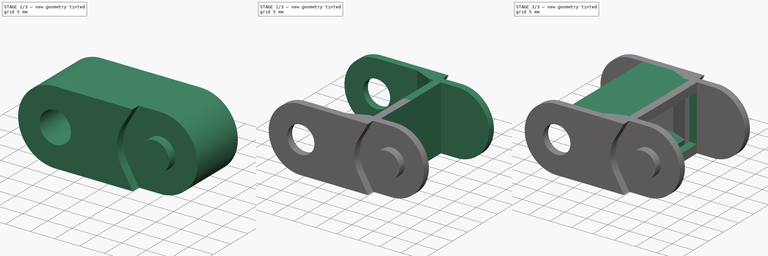
[diagram: build sequence overview — one tinted view per stage of 3, left to right]
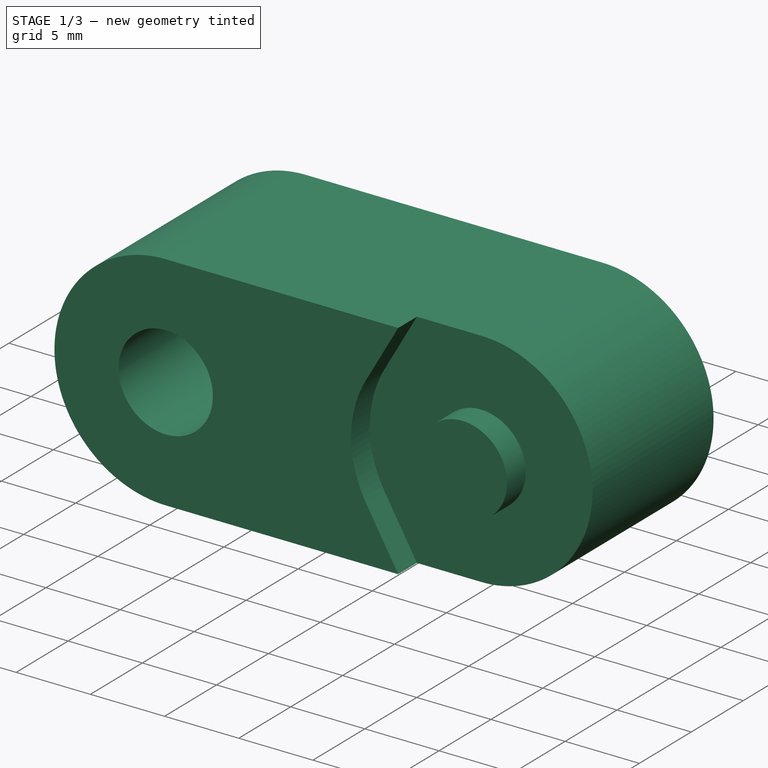
[diagram: stage 1 of 3 — iso view after this stage's code; geometry added in this stage tinted green]
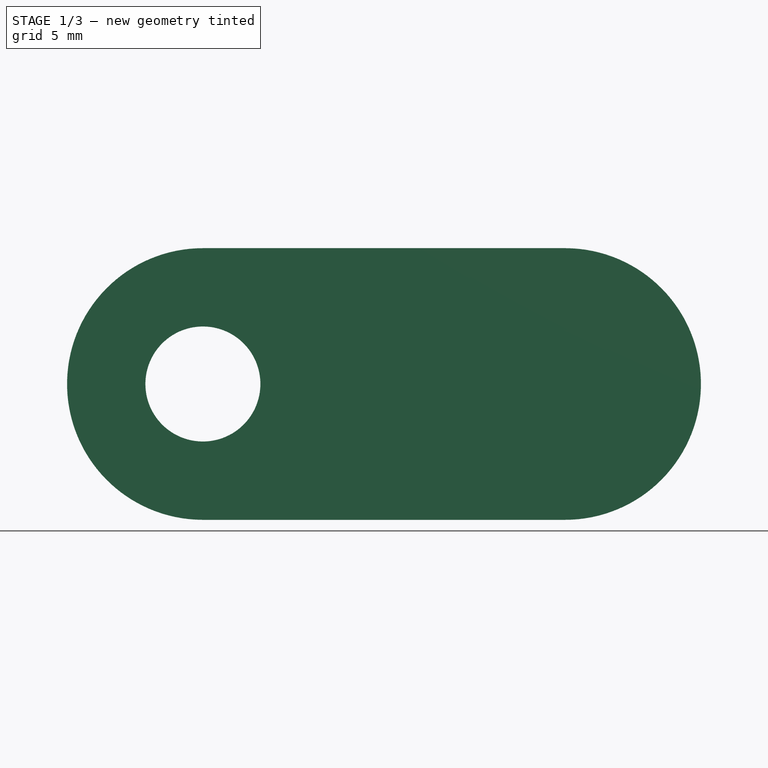
[diagram: stage 1 of 3 — front view after this stage's code; geometry added in this stage tinted green]
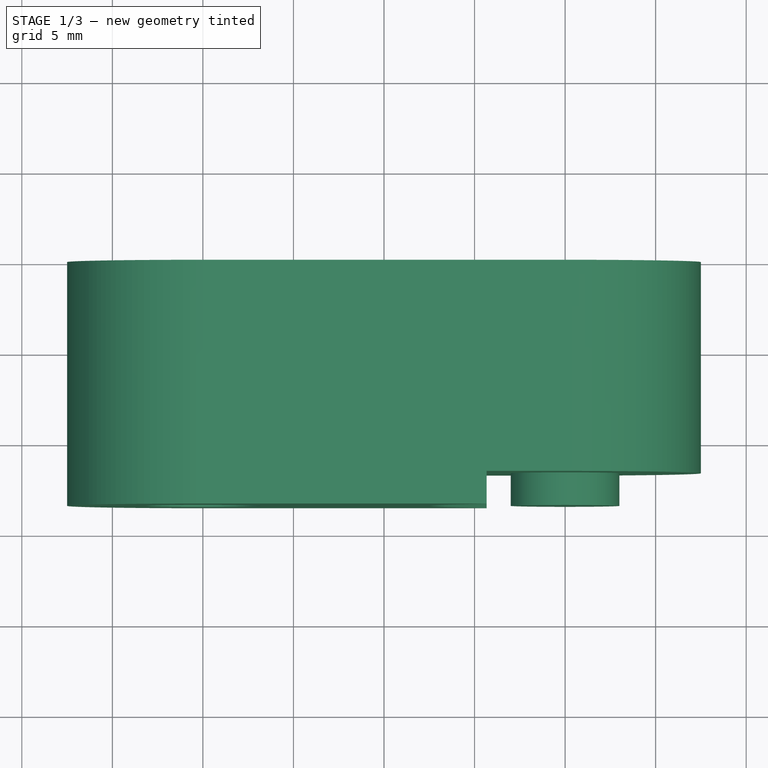
[diagram: stage 1 of 3 — top view after this stage's code; geometry added in this stage tinted green]
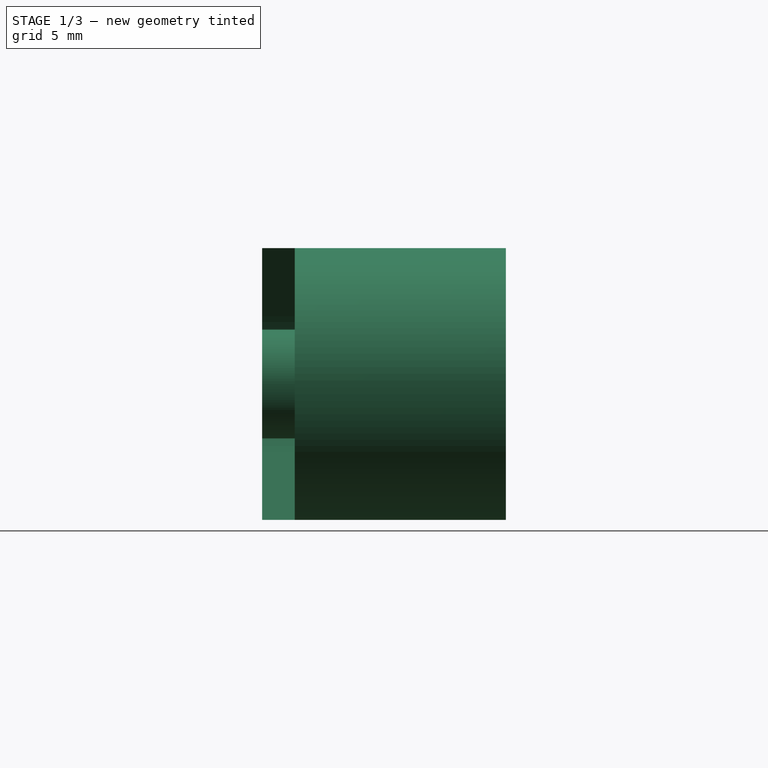
[diagram: stage 1 of 3 — right view after this stage's code; geometry added in this stage tinted green]
FCSTD DOCUMENT  (FreeCAD 1.0R39109 (Git))
Label: dragchain-link
License: All rights reserved
LicenseURL: http://en.wikipedia.org/wiki/All_rights_reserved
objects: Sketcher::SketchObject×5, PartDesign::Pocket×3, PartDesign::Pad×2, PartDesign::Mirrored×1, PartDesign::Body×1
note: 28 computed .brp shape members not serialized (recipe doc carries the construction recipe); baked Part::Feature solids carry a one-line shape summary decoded from their .brp

FEATURE [Sketcher::SketchObject] Sketch
  ArcFitTolerance = 1e-06
  FullyConstrained = true
  MakeInternals = false
  MapMode = 5
  Placement = pos=(0,0,0) rot=(1,0,0;1.5708rad)
  sketch-geometry (8):
    g0: Circle CenterX=0 CenterY=0 CenterZ=0 NormalX=0 NormalY=0 NormalZ=1 AngleXU=0 Radius=3.175
    g1: ArcOfCircle CenterX=0 CenterY=0 CenterZ=0 NormalX=0 NormalY=0 NormalZ=1 AngleXU=0 Radius=7.5 StartAngle=1.5708 EndAngle=4.71239
    g2: LineSegment StartX=5e-16 StartY=7.5 StartZ=0 EndX=20 EndY=7.5 EndZ=0
    g3: LineSegment StartX=20 StartY=-7.5 StartZ=0 EndX=0 EndY=-7.5 EndZ=0
    g4: GeomPoint X=-7.5 Y=0 Z=0
    g5: ArcOfCircle CenterX=20 CenterY=0 CenterZ=0 NormalX=0 NormalY=0 NormalZ=1 AngleXU=0 Radius=7.5 StartAngle=4.71239 EndAngle=7.85398
    g6: Circle [constr] CenterX=20 CenterY=0 CenterZ=0 NormalX=0 NormalY=0 NormalZ=1 AngleXU=0 Radius=3
    g7: GeomPoint X=27.5 Y=0 Z=0
  constraints (17):
    c: Diameter(g1) = 15
    c: Diameter(g0) = 6.35
    c: Coincident(g0,g1)
    c: Coincident(g0,g-1)
    c: Tangent(g1,g3) = 1.5708
    c: PointOnObject(g2,g-2)
    c: PointOnObject(g5,g-1)
    c: Tangent(g5,g2) = 1.5708
    c: Tangent(g3,g5) = 1.5708
    c: Coincident(g6,g5)
    c: Diameter(g6) = 6
    c: PointOnObject(g7,g5)
    c: DistanceX(g4,g7) = 35
    c: PointOnObject(g7,g-1)
    c: PointOnObject(g4,g1)
    c: PointOnObject(g4,g-1)
    c: Tangent(g1,g2) = 1.5708
FEATURE [Sketcher::SketchObject] Sketch001
  ArcFitTolerance = 1e-06
  AttachmentSupport = -> [XY_Plane]
  FullyConstrained = false
  MakeInternals = false
  MapMode = 5
  sketch-geometry (11):
    g0: LineSegment StartX=-7.5 StartY=-11.8 StartZ=0 EndX=9.5 EndY=-11.8 EndZ=0
    g1: LineSegment StartX=9.5 StartY=-11.8 StartZ=0 EndX=13.5 EndY=-10.022 EndZ=0
    g2: LineSegment StartX=13.5 StartY=-10.022 StartZ=0 EndX=14.54 EndY=-10.022 EndZ=0
    g3: LineSegment StartX=32.5566 StartY=0 StartZ=0 EndX=32.5566 EndY=-10.022 EndZ=0
    g4: GeomPoint X=14.54 Y=0 Z=0
    g5: LineSegment StartX=-7.5 StartY=-11.8 StartZ=0 EndX=-7.5 EndY=0 EndZ=0
    g6: LineSegment StartX=-7.5 StartY=0 StartZ=0 EndX=14.54 EndY=0 EndZ=0
    g7: LineSegment StartX=14.54 StartY=0 StartZ=0 EndX=14.54 EndY=-10.022 EndZ=0
    g8: LineSegment StartX=16.2728 StartY=-10.022 StartZ=0 EndX=16.3441 EndY=0 EndZ=0
    g9: LineSegment StartX=16.3441 StartY=0 StartZ=0 EndX=32.5566 EndY=0 EndZ=0
    g10: LineSegment StartX=16.2728 StartY=-10.022 StartZ=0 EndX=32.5566 EndY=-10.022 EndZ=0
  constraints (24):
    c: Coincident(g0,g1)
    c: Coincident(g1,g2)
    c: Horizontal(g2)
    c: Coincident(g3,g10)
    c: Vertical(g3)
    c: DistanceX(g10) = 32.5566
    c: DistanceX(g1) = 13.5
    c: Horizontal(g0)
    c: DistanceY(g1,g1) = 1.778
    c: PointOnObject(g4,g-1)
    c: DistanceX(g0,g-1) = 7.5
    c: Coincident(g0,g5)
    c: PointOnObject(g5,g-1)
    c: Coincident(g5,g6)
    c: Coincident(g6,g4)
    c: Coincident(g6,g7)
    c: Vertical(g7)
    c: Vertical(g5)
    c: Coincident(g3,g9)
    c: Coincident(g2,g7)
    c: PointOnObject(g3,g-1)
    c: Coincident(g8,g10)
    c: Horizontal(g10)
    c: PointOnObject(g8,g2)
FEATURE [Sketcher::SketchObject] Sketch004  label="toplink"
  ArcFitTolerance = 1e-06
  FullyConstrained = true
  MakeInternals = false
  MapMode = 5
  Placement = pos=(0,0,0) rot=(1,0,0;1.5708rad)
  sketch-geometry (9):
    g0: LineSegment StartX=3.63866 StartY=7.5 StartZ=0 EndX=3.63866 EndY=5.468 EndZ=0
    g1: LineSegment StartX=3.63866 StartY=5.468 StartZ=0 EndX=15.6387 EndY=5.468 EndZ=0
    g2: LineSegment StartX=15.6387 StartY=5.468 StartZ=0 EndX=15.6387 EndY=7.5 EndZ=0
    g3: LineSegment StartX=15.6387 StartY=7.5 StartZ=0 EndX=3.63866 EndY=7.5 EndZ=0
    g4: LineSegment StartX=4.88866 StartY=-5.468 StartZ=0 EndX=4.88866 EndY=-7.5 EndZ=0
    g5: LineSegment StartX=4.88866 StartY=-7.5 StartZ=0 EndX=14.3887 EndY=-7.5 EndZ=0
    g6: LineSegment StartX=14.3887 StartY=-7.5 StartZ=0 EndX=14.3887 EndY=-5.468 EndZ=0
    g7: LineSegment StartX=14.3887 StartY=-5.468 StartZ=0 EndX=4.88866 EndY=-5.468 EndZ=0
    g8: LineSegment [constr] StartX=9.63866 StartY=7.5 StartZ=0 EndX=9.63866 EndY=-7.5 EndZ=0
  constraints (26):
    c: Coincident(g0,g1)
    c: Coincident(g1,g2)
    c: Coincident(g3,g0)
    c: Vertical(g0)
    c: Vertical(g2)
    c: Horizontal(g1)
    c: DistanceX(g3,g3) = 12
    c: Vertical(g4)
    c: DistanceX(g5,g5) = 9.5
    c: DistanceY(g2,g2) = 2.032
    c: Coincident(g6,g5)
    c: Coincident(g6,g7)
    c: Horizontal(g7)
    c: Coincident(g7,g4)
    c: Symmetric(g2,g0,g8)
    c: DistanceY(g8,g8) = 15
    c: Symmetric(g5,g5,g8)
    c: Horizontal(g5)
    c: Coincident(g4,g5)
    c: Horizontal(g3)
    c: Coincident(g2,g3)
    c: Vertical(g6)
    c: Equal(g2,g6)
    c: Symmetric(g8,g8,g-1)
    c: DistanceX(g0) = 3.63866
    c: DistanceY(g0) = 7.5
FEATURE [PartDesign::Pad] Pad
  Direction = (0,-1,0)
  Length = 13.462
  Length2 = 10
  Placement = pos=(0,0,0) rot=(1,0,0;1.5708rad)
  Profile = -> Sketch
  ReferenceAxis = -> Sketch [N_Axis]
  Suppressed = false
  Type = 0
FEATURE [Sketcher::SketchObject] Sketch003  label="linkrecess"
  ArcFitTolerance = 1e-06
  AttachmentSupport = -> [Pad]
  FullyConstrained = true
  MakeInternals = false
  MapMode = 5
  Placement = pos=(0,-13.462,0) rot=(1,0,0;1.5708rad)
  sketch-geometry (6):
    g0: Circle CenterX=20 CenterY=0 CenterZ=0 NormalX=0 NormalY=0 NormalZ=1 AngleXU=0 Radius=3
    g1: ArcOfCircle CenterX=20 CenterY=0 CenterZ=0 NormalX=0 NormalY=0 NormalZ=1 AngleXU=0 Radius=7.5 StartAngle=2.61799 EndAngle=3.66519
    g2: LineSegment StartX=13.5048 StartY=3.75 StartZ=0 EndX=21.1248 EndY=16.9482 EndZ=0
    g3: LineSegment StartX=13.5048 StartY=-3.75 StartZ=0 EndX=19.8548 EndY=-14.7485 EndZ=0
    g4: LineSegment StartX=19.8548 StartY=-14.7485 StartZ=0 EndX=34.5324 EndY=-6.27441 EndZ=0
    g5: LineSegment StartX=21.1248 StartY=16.9482 StartZ=0 EndX=34.5324 EndY=-6.27441 EndZ=0
  constraints (17):
    c: PointOnObject(g0,g-1)
    c: Coincident(g1,g0)
    c: Diameter(g0) = 6
    c: Diameter(g0) = 6
    c: Diameter(g1) = 15
    c: DistanceX(g-1,g0) = 20
    c: Coincident(g4,g3)
    c: Coincident(g5,g2)
    c: Perpendicular(g5,g4)
    c: Angle(g-1,g2) = 1.0472
    c: Angle(g-1,g3) = 2.0944
    c: Distance(g2) = 15.24
    c: Coincident(g5,g4)
    c: Perpendicular(g4,g3)
    c: Distance(g3) = 12.7
    c: Tangent(g1,g3) = -1.5708
    c: Tangent(g1,g2) = 1.5708
FEATURE [PartDesign::Pocket] Pocket
  BaseFeature = -> Pad
  Direction = (0,1,-2e-16)
  Length = 1.8
  Length2 = 5
  Placement = pos=(0,0,0) rot=(1,0,0;1.5708rad)
  Profile = -> Sketch003
  ReferenceAxis = -> Sketch003 [N_Axis]
  Suppressed = false
  Type = 0
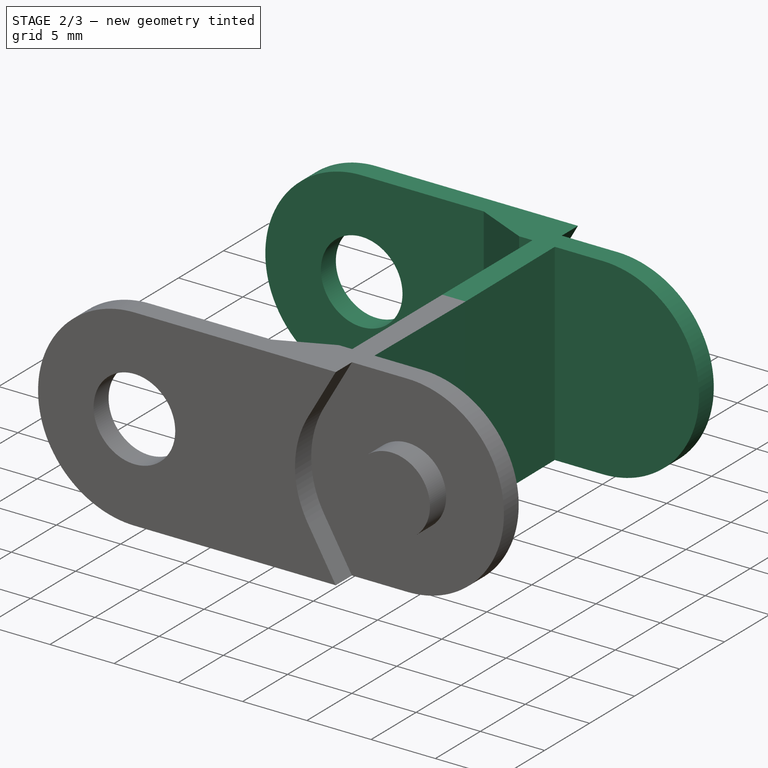
[diagram: stage 2 of 3 — iso view after this stage's code; geometry added in this stage tinted green]
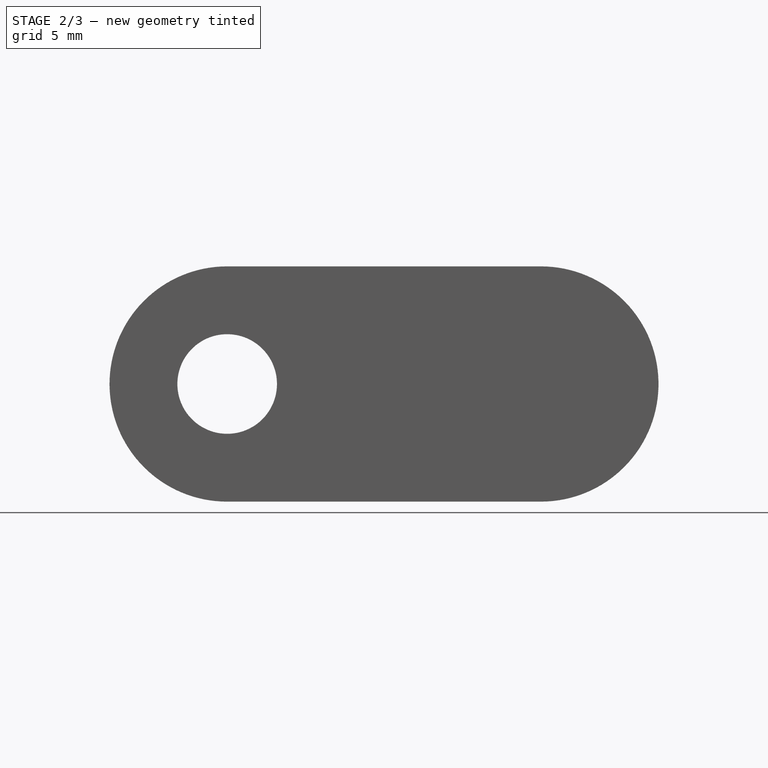
[diagram: stage 2 of 3 — front view after this stage's code; geometry added in this stage tinted green]
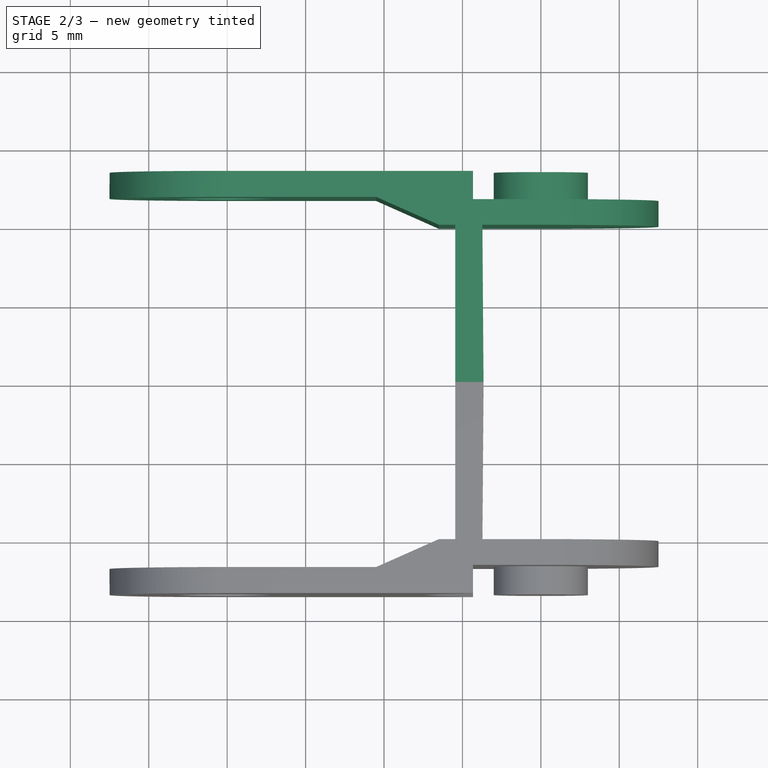
[diagram: stage 2 of 3 — top view after this stage's code; geometry added in this stage tinted green]
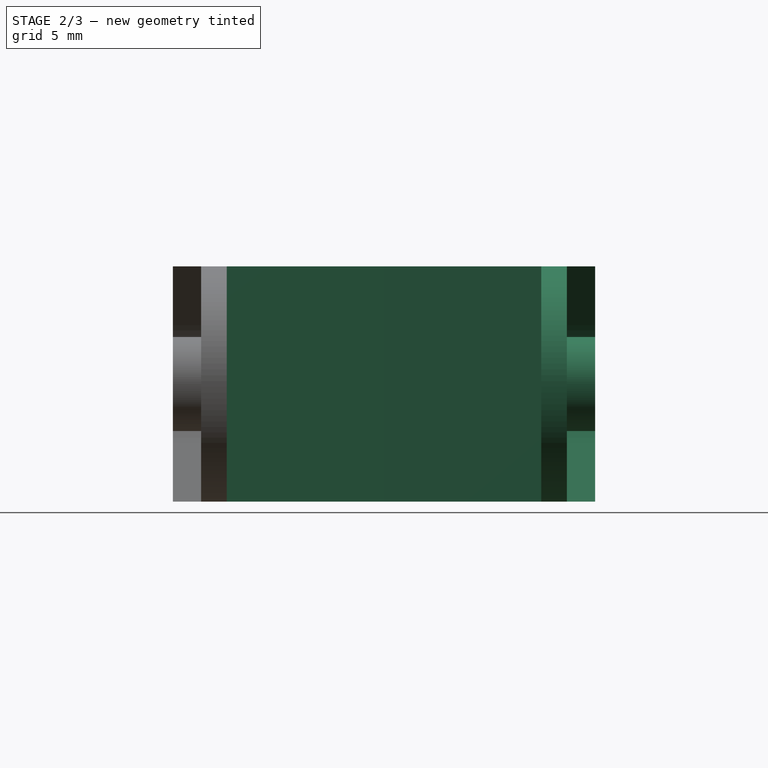
[diagram: stage 2 of 3 — right view after this stage's code; geometry added in this stage tinted green]
FEATURE [PartDesign::Pocket] Pocket001
  BaseFeature = -> Pocket
  Direction = (0,0,-1)
  Length = 5
  Length2 = 5
  Midplane = true
  Placement = pos=(0,0,0) rot=(1,0,0;1.5708rad)
  Profile = -> Sketch001
  ReferenceAxis = -> Sketch001 [N_Axis]
  Suppressed = false
  Type = 1
FEATURE [PartDesign::Mirrored] Mirrored
  BaseFeature = -> Pocket001
  MirrorPlane = -> Sketch001 [H_Axis]
  Originals = -> [Pocket001]
  Placement = pos=(0,0,0) rot=(1,0,0;1.5708rad)
  Suppressed = false
  TransformMode = 1
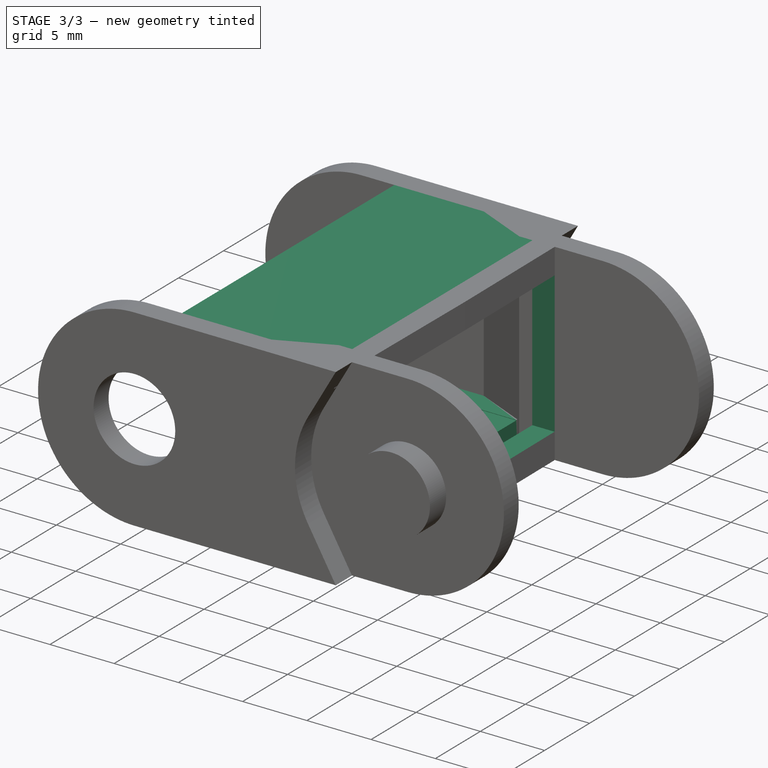
[diagram: stage 3 of 3 — iso view after this stage's code; geometry added in this stage tinted green]
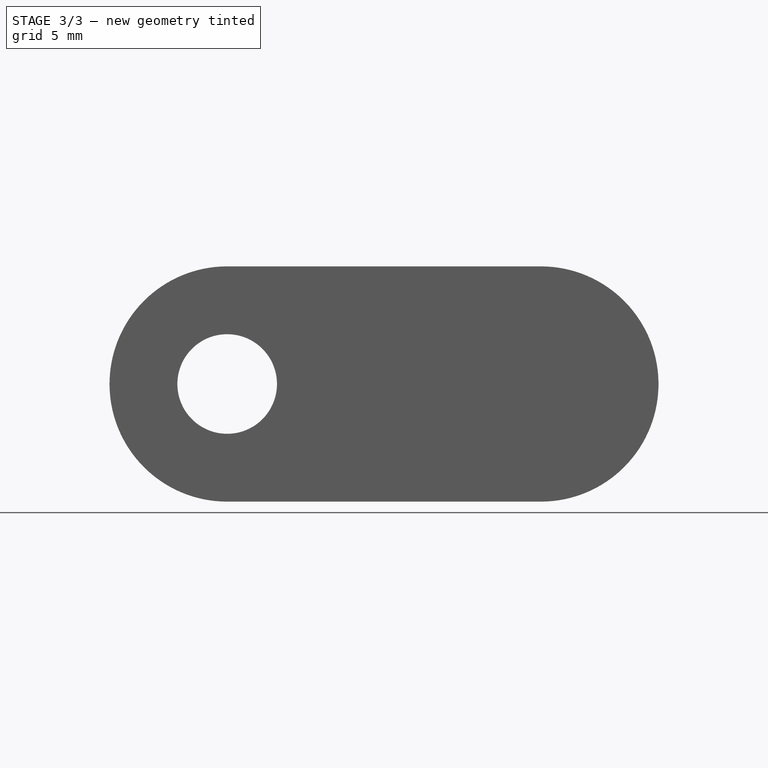
[diagram: stage 3 of 3 — front view after this stage's code; geometry added in this stage tinted green]
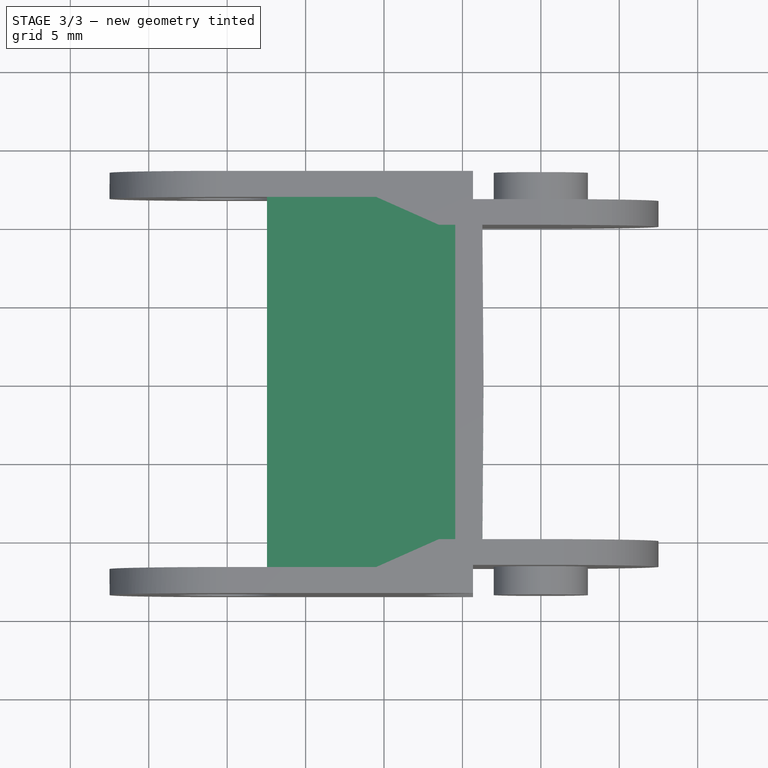
[diagram: stage 3 of 3 — top view after this stage's code; geometry added in this stage tinted green]
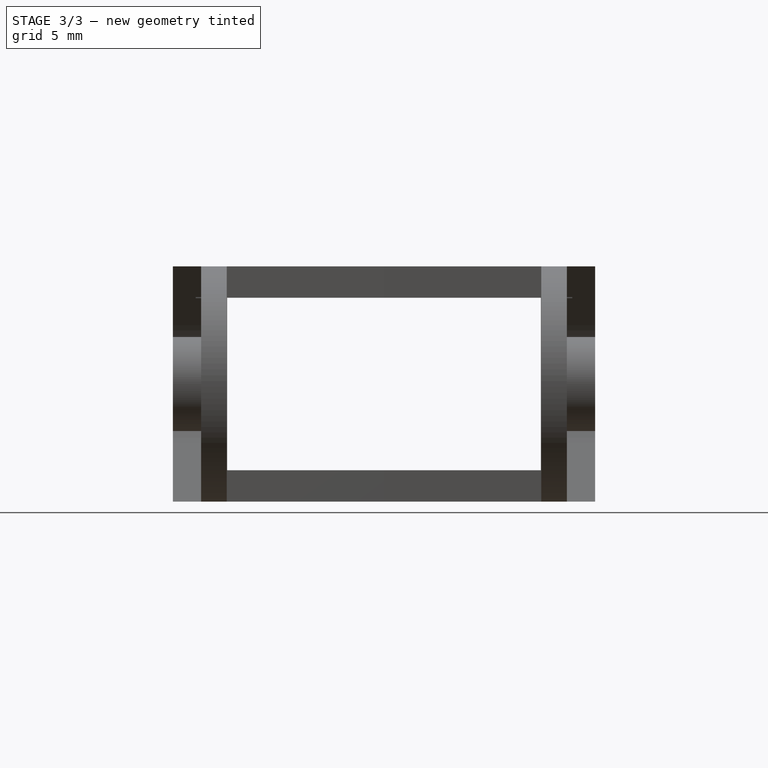
[diagram: stage 3 of 3 — right view after this stage's code; geometry added in this stage tinted green]
FEATURE [PartDesign::Pad] Pad001
  BaseFeature = -> Mirrored
  Direction = (0,-1,0)
  Length = 24
  Length2 = 10
  Midplane = true
  Placement = pos=(0,0,0) rot=(1,0,0;1.5708rad)
  Profile = -> Sketch004
  ReferenceAxis = -> Sketch004 [N_Axis]
  Suppressed = false
  Type = 0
FEATURE [Sketcher::SketchObject] Sketch005
  ArcFitTolerance = 1e-06
  AttachmentSupport = -> [YZ_Plane]
  FullyConstrained = true
  MakeInternals = false
  MapMode = 5
  Placement = pos=(0,0,0) rot=(0.57735,0.57735,0.57735;2.0944rad)
  sketch-geometry (4):
    g0: LineSegment StartX=-10 StartY=-5.5 StartZ=0 EndX=10 EndY=-5.5 EndZ=0
    g1: LineSegment StartX=10 StartY=-5.5 StartZ=0 EndX=10 EndY=5.5 EndZ=0
    g2: LineSegment StartX=10 StartY=5.5 StartZ=0 EndX=-10 EndY=5.5 EndZ=0
    g3: LineSegment StartX=-10 StartY=5.5 StartZ=0 EndX=-10 EndY=-5.5 EndZ=0
  constraints (11):
    c: Coincident(g0,g1)
    c: Coincident(g1,g2)
    c: Coincident(g2,g3)
    c: Coincident(g3,g0)
    c: Horizontal(g0)
    c: Horizontal(g2)
    c: Vertical(g1)
    c: Vertical(g3)
    c: DistanceX(g0,g0) = 20
    c: DistanceY(g1,g1) = 11
    c: Symmetric(g0,g1,g-1)
FEATURE [PartDesign::Pocket] Pocket002
  BaseFeature = -> Pad001
  Direction = (-1,0,0)
  Length = 5
  Length2 = 5
  Midplane = true
  Placement = pos=(0,0,0) rot=(1,0,0;1.5708rad)
  Profile = -> Sketch005
  ReferenceAxis = -> Sketch005 [N_Axis]
  Suppressed = false
  Type = 1
FEATURE [PartDesign::Body] Body
  AllowCompound = false
  Group = -> [Sketch,Sketch001,Sketch003,Sketch004,Pad,Pocket,Pocket001,Mirrored,Pad001,Sketch005,Pocket002]
  Origin = -> Origin
  Tip = -> Pocket002
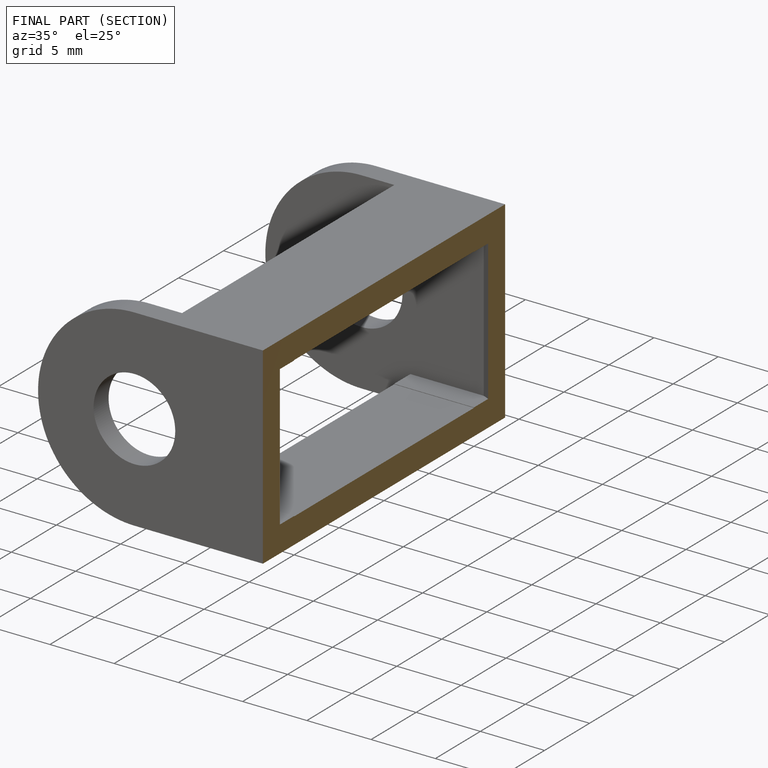
[diagram: finished part — half-section view (interior)]
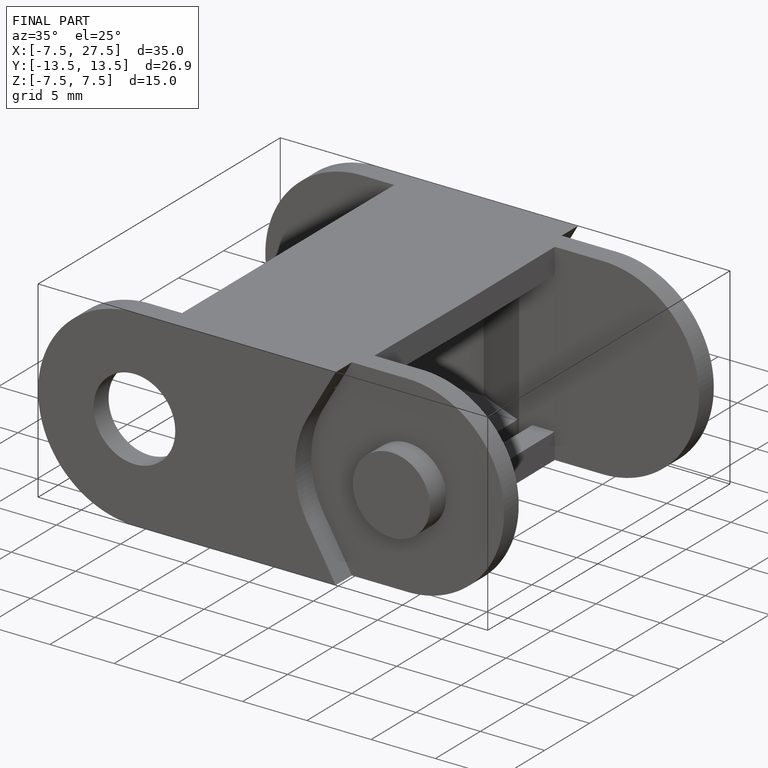
[diagram: finished part — iso view with bounding-box wireframe]
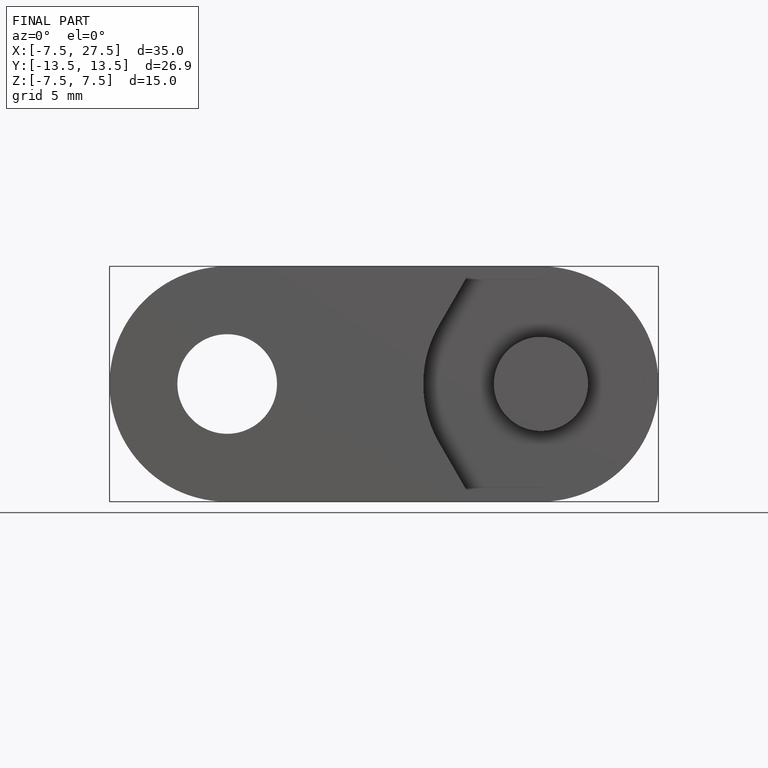
[diagram: finished part — front view with bounding-box wireframe]
